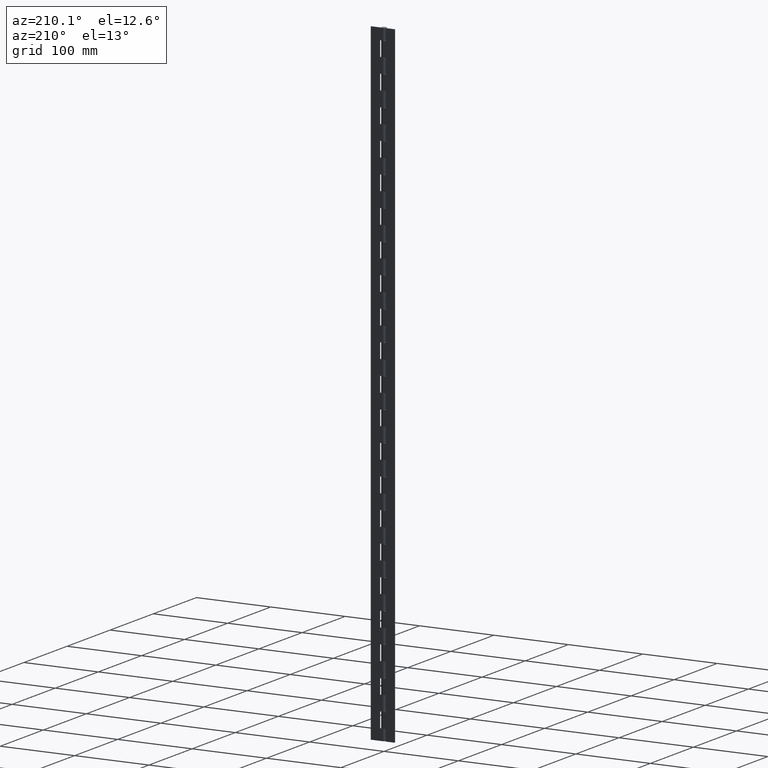
[diagram: clean part render]
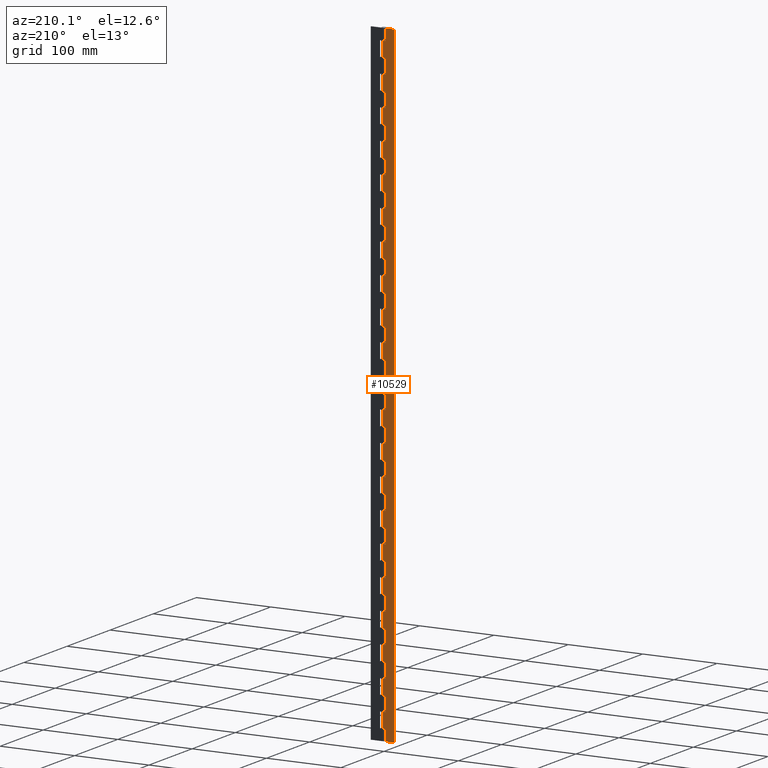
[diagram: same view with one face highlighted and labeled with its STEP entity id]
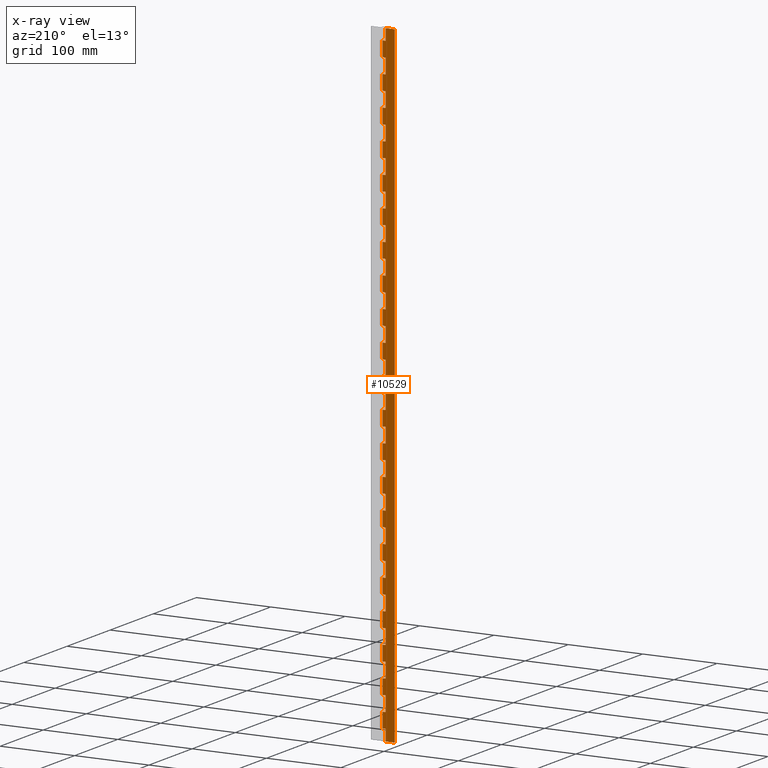
[diagram: x-ray of the same camera — body ghosted, the highlighted face saturated]
A machine part, auxiliary view. The second image highlights one B-rep face of the part: STEP entity #10529.
The next image is the same camera in x-ray: the body ghosted, the highlighted face saturated — about 0% of this face is hidden behind the body in this view.
In plain terms, the highlighted face is a freeform B-spline surface patch.
Its self-contained STEP definition (entity closure, byte-faithful):
#6297=CARTESIAN_POINT('',(0.0,3.250000000000000,15.000022000000151));
#6298=VERTEX_POINT('',#6297);
#6355=CARTESIAN_POINT('',(-4.0,3.250000000000000,15.000022000000151));
#6356=VERTEX_POINT('',#6355);
#6362=CARTESIAN_POINT('',(-4.0,3.250000000000000,15.000022000000151));
#6363=CARTESIAN_POINT('',(0.0,3.250000000000000,15.000022000000151));
#6364=QUASI_UNIFORM_CURVE('',1,(#6362,#6363),.UNSPECIFIED.,.F.,.U.);
#6365=EDGE_CURVE('',#6356,#6298,#6364,.T.);
#6382=CARTESIAN_POINT('',(-4.0,3.250000000000000,0.0));
#6383=VERTEX_POINT('',#6382);
#6389=CARTESIAN_POINT('',(-4.0,3.250000000000000,0.0));
#6390=CARTESIAN_POINT('',(-4.0,3.250000000000000,15.000022000000151));
#6391=QUASI_UNIFORM_CURVE('',1,(#6389,#6390),.UNSPECIFIED.,.F.,.U.);
#6392=EDGE_CURVE('',#6383,#6356,#6391,.T.);
#6405=CARTESIAN_POINT('',(0.0,3.250000000000000,35.000022000000087));
#6406=VERTEX_POINT('',#6405);
#6426=CARTESIAN_POINT('',(-4.0,3.250000000000000,35.000022000000087));
#6427=VERTEX_POINT('',#6426);
#6428=CARTESIAN_POINT('',(0.0,3.250000000000000,35.000022000000087));
#6429=CARTESIAN_POINT('',(-4.0,3.250000000000000,35.000022000000087));
#6430=QUASI_UNIFORM_CURVE('',1,(#6428,#6429),.UNSPECIFIED.,.F.,.U.);
#6431=EDGE_CURVE('',#6406,#6427,#6430,.T.);
#6481=CARTESIAN_POINT('',(0.0,3.250000000000000,55.000022000000101));
#6482=VERTEX_POINT('',#6481);
#6539=CARTESIAN_POINT('',(-4.0,3.250000000000000,55.000022000000101));
#6540=VERTEX_POINT('',#6539);
#6546=CARTESIAN_POINT('',(-4.0,3.250000000000000,55.000022000000101));
#6547=CARTESIAN_POINT('',(0.0,3.250000000000000,55.000022000000101));
#6548=QUASI_UNIFORM_CURVE('',1,(#6546,#6547),.UNSPECIFIED.,.F.,.U.);
#6549=EDGE_CURVE('',#6540,#6482,#6548,.T.);
#6565=CARTESIAN_POINT('',(-4.0,3.250000000000000,35.000022000000087));
#6566=CARTESIAN_POINT('',(-4.0,3.250000000000000,55.000022000000101));
#6567=QUASI_UNIFORM_CURVE('',1,(#6565,#6566),.UNSPECIFIED.,.F.,.U.);
#6568=EDGE_CURVE('',#6427,#6540,#6567,.T.);
#6581=CARTESIAN_POINT('',(0.0,3.250000000000000,75.000022000000101));
#6582=VERTEX_POINT('',#6581);
#6602=CARTESIAN_POINT('',(-4.0,3.250000000000000,75.000022000000101));
#6603=VERTEX_POINT('',#6602);
#6604=CARTESIAN_POINT('',(0.0,3.250000000000000,75.000022000000101));
#6605=CARTESIAN_POINT('',(-4.0,3.250000000000000,75.000022000000101));
#6606=QUASI_UNIFORM_CURVE('',1,(#6604,#6605),.UNSPECIFIED.,.F.,.U.);
#6607=EDGE_CURVE('',#6582,#6603,#6606,.T.);
#6657=CARTESIAN_POINT('',(0.0,3.250000000000000,95.000022000000101));
#6658=VERTEX_POINT('',#6657);
#6715=CARTESIAN_POINT('',(-4.0,3.250000000000000,95.000022000000101));
#6716=VERTEX_POINT('',#6715);
#6722=CARTESIAN_POINT('',(-4.0,3.250000000000000,95.000022000000101));
#6723=CARTESIAN_POINT('',(0.0,3.250000000000000,95.000022000000101));
#6724=QUASI_UNIFORM_CURVE('',1,(#6722,#6723),.UNSPECIFIED.,.F.,.U.);
#6725=EDGE_CURVE('',#6716,#6658,#6724,.T.);
#6741=CARTESIAN_POINT('',(-4.0,3.250000000000000,75.000022000000101));
#6742=CARTESIAN_POINT('',(-4.0,3.250000000000000,95.000022000000101));
#6743=QUASI_UNIFORM_CURVE('',1,(#6741,#6742),.UNSPECIFIED.,.F.,.U.);
#6744=EDGE_CURVE('',#6603,#6716,#6743,.T.);
#6757=CARTESIAN_POINT('',(0.0,3.250000000000000,115.000022000000200));
#6758=VERTEX_POINT('',#6757);
#6778=CARTESIAN_POINT('',(-4.0,3.250000000000000,115.000022000000200));
#6779=VERTEX_POINT('',#6778);
#6780=CARTESIAN_POINT('',(0.0,3.250000000000000,115.000022000000200));
#6781=CARTESIAN_POINT('',(-4.0,3.250000000000000,115.000022000000200));
#6782=QUASI_UNIFORM_CURVE('',1,(#6780,#6781),.UNSPECIFIED.,.F.,.U.);
#6783=EDGE_CURVE('',#6758,#6779,#6782,.T.);
#6833=CARTESIAN_POINT('',(0.0,3.250000000000000,135.000022000000200));
#6834=VERTEX_POINT('',#6833);
#6891=CARTESIAN_POINT('',(-4.0,3.250000000000000,135.000022000000200));
#6892=VERTEX_POINT('',#6891);
#6898=CARTESIAN_POINT('',(-4.0,3.250000000000000,135.000022000000200));
#6899=CARTESIAN_POINT('',(0.0,3.250000000000000,135.000022000000200));
#6900=QUASI_UNIFORM_CURVE('',1,(#6898,#6899),.UNSPECIFIED.,.F.,.U.);
#6901=EDGE_CURVE('',#6892,#6834,#6900,.T.);
#6917=CARTESIAN_POINT('',(-4.0,3.250000000000000,115.000022000000200));
#6918=CARTESIAN_POINT('',(-4.0,3.250000000000000,135.000022000000200));
#6919=QUASI_UNIFORM_CURVE('',1,(#6917,#6918),.UNSPECIFIED.,.F.,.U.);
#6920=EDGE_CURVE('',#6779,#6892,#6919,.T.);
#6933=CARTESIAN_POINT('',(0.0,3.250000000000000,155.000022000000000));
#6934=VERTEX_POINT('',#6933);
#6954=CARTESIAN_POINT('',(-4.0,3.250000000000000,155.000022000000000));
#6955=VERTEX_POINT('',#6954);
#6956=CARTESIAN_POINT('',(0.0,3.250000000000000,155.000022000000000));
#6957=CARTESIAN_POINT('',(-4.0,3.250000000000000,155.000022000000000));
#6958=QUASI_UNIFORM_CURVE('',1,(#6956,#6957),.UNSPECIFIED.,.F.,.U.);
#6959=EDGE_CURVE('',#6934,#6955,#6958,.T.);
#7009=CARTESIAN_POINT('',(0.0,3.250000000000000,175.000022000000000));
#7010=VERTEX_POINT('',#7009);
#7067=CARTESIAN_POINT('',(-4.0,3.250000000000000,175.000022000000000));
#7068=VERTEX_POINT('',#7067);
#7074=CARTESIAN_POINT('',(-4.0,3.250000000000000,175.000022000000000));
#7075=CARTESIAN_POINT('',(0.0,3.250000000000000,175.000022000000000));
#7076=QUASI_UNIFORM_CURVE('',1,(#7074,#7075),.UNSPECIFIED.,.F.,.U.);
#7077=EDGE_CURVE('',#7068,#7010,#7076,.T.);
#7093=CARTESIAN_POINT('',(-4.0,3.250000000000000,155.000022000000000));
#7094=CARTESIAN_POINT('',(-4.0,3.250000000000000,175.000022000000000));
#7095=QUASI_UNIFORM_CURVE('',1,(#7093,#7094),.UNSPECIFIED.,.F.,.U.);
#7096=EDGE_CURVE('',#6955,#7068,#7095,.T.);
#7109=CARTESIAN_POINT('',(0.0,3.250000000000000,195.000022000000000));
#7110=VERTEX_POINT('',#7109);
#7130=CARTESIAN_POINT('',(-4.0,3.250000000000000,195.000022000000000));
#7131=VERTEX_POINT('',#7130);
#7132=CARTESIAN_POINT('',(0.0,3.250000000000000,195.000022000000000));
#7133=CARTESIAN_POINT('',(-4.0,3.250000000000000,195.000022000000000));
#7134=QUASI_UNIFORM_CURVE('',1,(#7132,#7133),.UNSPECIFIED.,.F.,.U.);
#7135=EDGE_CURVE('',#7110,#7131,#7134,.T.);
#7185=CARTESIAN_POINT('',(0.0,3.250000000000000,215.000022000000000));
#7186=VERTEX_POINT('',#7185);
#7243=CARTESIAN_POINT('',(-4.0,3.250000000000000,215.000022000000000));
#7244=VERTEX_POINT('',#7243);
#7250=CARTESIAN_POINT('',(-4.0,3.250000000000000,215.000022000000000));
#7251=CARTESIAN_POINT('',(0.0,3.250000000000000,215.000022000000000));
#7252=QUASI_UNIFORM_CURVE('',1,(#7250,#7251),.UNSPECIFIED.,.F.,.U.);
#7253=EDGE_CURVE('',#7244,#7186,#7252,.T.);
#7269=CARTESIAN_POINT('',(-4.0,3.250000000000000,195.000022000000000));
#7270=CARTESIAN_POINT('',(-4.0,3.250000000000000,215.000022000000000));
#7271=QUASI_UNIFORM_CURVE('',1,(#7269,#7270),.UNSPECIFIED.,.F.,.U.);
#7272=EDGE_CURVE('',#7131,#7244,#7271,.T.);
#7285=CARTESIAN_POINT('',(0.0,3.250000000000000,235.000022000000000));
#7286=VERTEX_POINT('',#7285);
#7306=CARTESIAN_POINT('',(-4.0,3.250000000000000,235.000022000000000));
#7307=VERTEX_POINT('',#7306);
#7308=CARTESIAN_POINT('',(0.0,3.250000000000000,235.000022000000000));
#7309=CARTESIAN_POINT('',(-4.0,3.250000000000000,235.000022000000000));
#7310=QUASI_UNIFORM_CURVE('',1,(#7308,#7309),.UNSPECIFIED.,.F.,.U.);
#7311=EDGE_CURVE('',#7286,#7307,#7310,.T.);
#7361=CARTESIAN_POINT('',(0.0,3.250000000000000,255.000022000000000));
#7362=VERTEX_POINT('',#7361);
#7419=CARTESIAN_POINT('',(-4.0,3.250000000000000,255.000022000000000));
#7420=VERTEX_POINT('',#7419);
#7426=CARTESIAN_POINT('',(-4.0,3.250000000000000,255.000022000000000));
#7427=CARTESIAN_POINT('',(0.0,3.250000000000000,255.000022000000000));
#7428=QUASI_UNIFORM_CURVE('',1,(#7426,#7427),.UNSPECIFIED.,.F.,.U.);
#7429=EDGE_CURVE('',#7420,#7362,#7428,.T.);
#7445=CARTESIAN_POINT('',(-4.0,3.250000000000000,235.000022000000000));
#7446=CARTESIAN_POINT('',(-4.0,3.250000000000000,255.000022000000000));
#7447=QUASI_UNIFORM_CURVE('',1,(#7445,#7446),.UNSPECIFIED.,.F.,.U.);
#7448=EDGE_CURVE('',#7307,#7420,#7447,.T.);
#7461=CARTESIAN_POINT('',(0.0,3.250000000000000,275.000022000000000));
#7462=VERTEX_POINT('',#7461);
#7482=CARTESIAN_POINT('',(-4.0,3.250000000000000,275.000022000000000));
#7483=VERTEX_POINT('',#7482);
#7484=CARTESIAN_POINT('',(0.0,3.250000000000000,275.000022000000000));
#7485=CARTESIAN_POINT('',(-4.0,3.250000000000000,275.000022000000000));
#7486=QUASI_UNIFORM_CURVE('',1,(#7484,#7485),.UNSPECIFIED.,.F.,.U.);
#7487=EDGE_CURVE('',#7462,#7483,#7486,.T.);
#7537=CARTESIAN_POINT('',(0.0,3.250000000000000,295.000021999999890));
#7538=VERTEX_POINT('',#7537);
#7595=CARTESIAN_POINT('',(-4.0,3.250000000000000,295.000021999999890));
#7596=VERTEX_POINT('',#7595);
#7602=CARTESIAN_POINT('',(-4.0,3.250000000000000,295.000021999999890));
#7603=CARTESIAN_POINT('',(0.0,3.250000000000000,295.000021999999890));
#7604=QUASI_UNIFORM_CURVE('',1,(#7602,#7603),.UNSPECIFIED.,.F.,.U.);
#7605=EDGE_CURVE('',#7596,#7538,#7604,.T.);
#7621=CARTESIAN_POINT('',(-4.0,3.250000000000000,275.000022000000000));
#7622=CARTESIAN_POINT('',(-4.0,3.250000000000000,295.000021999999890));
#7623=QUASI_UNIFORM_CURVE('',1,(#7621,#7622),.UNSPECIFIED.,.F.,.U.);
#7624=EDGE_CURVE('',#7483,#7596,#7623,.T.);
#7637=CARTESIAN_POINT('',(0.0,3.250000000000000,315.000022000000000));
#7638=VERTEX_POINT('',#7637);
#7658=CARTESIAN_POINT('',(-4.0,3.250000000000000,315.000022000000000));
#7659=VERTEX_POINT('',#7658);
#7660=CARTESIAN_POINT('',(0.0,3.250000000000000,315.000022000000000));
#7661=CARTESIAN_POINT('',(-4.0,3.250000000000000,315.000022000000000));
#7662=QUASI_UNIFORM_CURVE('',1,(#7660,#7661),.UNSPECIFIED.,.F.,.U.);
#7663=EDGE_CURVE('',#7638,#7659,#7662,.T.);
#7713=CARTESIAN_POINT('',(0.0,3.250000000000000,335.000022000000000));
#7714=VERTEX_POINT('',#7713);
#7771=CARTESIAN_POINT('',(-4.0,3.250000000000000,335.000022000000000));
#7772=VERTEX_POINT('',#7771);
#7778=CARTESIAN_POINT('',(-4.0,3.250000000000000,335.000022000000000));
#7779=CARTESIAN_POINT('',(0.0,3.250000000000000,335.000022000000000));
#7780=QUASI_UNIFORM_CURVE('',1,(#7778,#7779),.UNSPECIFIED.,.F.,.U.);
#7781=EDGE_CURVE('',#7772,#7714,#7780,.T.);
#7797=CARTESIAN_POINT('',(-4.0,3.250000000000000,315.000022000000000));
#7798=CARTESIAN_POINT('',(-4.0,3.250000000000000,335.000022000000000));
#7799=QUASI_UNIFORM_CURVE('',1,(#7797,#7798),.UNSPECIFIED.,.F.,.U.);
#7800=EDGE_CURVE('',#7659,#7772,#7799,.T.);
#7813=CARTESIAN_POINT('',(0.0,3.250000000000000,355.000022000000000));
#7814=VERTEX_POINT('',#7813);
#7834=CARTESIAN_POINT('',(-4.0,3.250000000000000,355.000022000000000));
#7835=VERTEX_POINT('',#7834);
#7836=CARTESIAN_POINT('',(0.0,3.250000000000000,355.000022000000000));
#7837=CARTESIAN_POINT('',(-4.0,3.250000000000000,355.000022000000000));
#7838=QUASI_UNIFORM_CURVE('',1,(#7836,#7837),.UNSPECIFIED.,.F.,.U.);
#7839=EDGE_CURVE('',#7814,#7835,#7838,.T.);
#7889=CARTESIAN_POINT('',(0.0,3.250000000000000,375.000022000000000));
#7890=VERTEX_POINT('',#7889);
#7947=CARTESIAN_POINT('',(-4.0,3.250000000000000,375.000022000000000));
#7948=VERTEX_POINT('',#7947);
#7954=CARTESIAN_POINT('',(-4.0,3.250000000000000,375.000022000000000));
#7955=CARTESIAN_POINT('',(0.0,3.250000000000000,375.000022000000000));
#7956=QUASI_UNIFORM_CURVE('',1,(#7954,#7955),.UNSPECIFIED.,.F.,.U.);
#7957=EDGE_CURVE('',#7948,#7890,#7956,.T.);
#7973=CARTESIAN_POINT('',(-4.0,3.250000000000000,355.000022000000000));
#7974=CARTESIAN_POINT('',(-4.0,3.250000000000000,375.000022000000000));
#7975=QUASI_UNIFORM_CURVE('',1,(#7973,#7974),.UNSPECIFIED.,.F.,.U.);
#7976=EDGE_CURVE('',#7835,#7948,#7975,.T.);
#7989=CARTESIAN_POINT('',(0.0,3.250000000000000,395.000022000000000));
#7990=VERTEX_POINT('',#7989);
#8010=CARTESIAN_POINT('',(-4.0,3.250000000000000,395.000022000000000));
#8011=VERTEX_POINT('',#8010);
#8012=CARTESIAN_POINT('',(0.0,3.250000000000000,395.000022000000000));
#8013=CARTESIAN_POINT('',(-4.0,3.250000000000000,395.000022000000000));
#8014=QUASI_UNIFORM_CURVE('',1,(#8012,#8013),.UNSPECIFIED.,.F.,.U.);
#8015=EDGE_CURVE('',#7990,#8011,#8014,.T.);
#8065=CARTESIAN_POINT('',(0.0,3.250000000000000,415.000022000000000));
#8066=VERTEX_POINT('',#8065);
#8123=CARTESIAN_POINT('',(-4.0,3.250000000000000,415.000022000000000));
#8124=VERTEX_POINT('',#8123);
#8130=CARTESIAN_POINT('',(-4.0,3.250000000000000,415.000022000000000));
#8131=CARTESIAN_POINT('',(0.0,3.250000000000000,415.000022000000000));
#8132=QUASI_UNIFORM_CURVE('',1,(#8130,#8131),.UNSPECIFIED.,.F.,.U.);
#8133=EDGE_CURVE('',#8124,#8066,#8132,.T.);
#8149=CARTESIAN_POINT('',(-4.0,3.250000000000000,395.000022000000000));
#8150=CARTESIAN_POINT('',(-4.0,3.250000000000000,415.000022000000000));
#8151=QUASI_UNIFORM_CURVE('',1,(#8149,#8150),.UNSPECIFIED.,.F.,.U.);
#8152=EDGE_CURVE('',#8011,#8124,#8151,.T.);
#8165=CARTESIAN_POINT('',(0.0,3.250000000000000,435.000022000000000));
#8166=VERTEX_POINT('',#8165);
#8186=CARTESIAN_POINT('',(-4.0,3.250000000000000,435.000022000000000));
#8187=VERTEX_POINT('',#8186);
#8188=CARTESIAN_POINT('',(0.0,3.250000000000000,435.000022000000000));
#8189=CARTESIAN_POINT('',(-4.0,3.250000000000000,435.000022000000000));
#8190=QUASI_UNIFORM_CURVE('',1,(#8188,#8189),.UNSPECIFIED.,.F.,.U.);
#8191=EDGE_CURVE('',#8166,#8187,#8190,.T.);
#8241=CARTESIAN_POINT('',(0.0,3.250000000000000,455.000022000000000));
#8242=VERTEX_POINT('',#8241);
#8299=CARTESIAN_POINT('',(-4.0,3.250000000000000,455.000022000000000));
#8300=VERTEX_POINT('',#8299);
#8306=CARTESIAN_POINT('',(-4.0,3.250000000000000,455.000022000000000));
#8307=CARTESIAN_POINT('',(0.0,3.250000000000000,455.000022000000000));
#8308=QUASI_UNIFORM_CURVE('',1,(#8306,#8307),.UNSPECIFIED.,.F.,.U.);
#8309=EDGE_CURVE('',#8300,#8242,#8308,.T.);
#8325=CARTESIAN_POINT('',(-4.0,3.250000000000000,435.000022000000000));
#8326=CARTESIAN_POINT('',(-4.0,3.250000000000000,455.000022000000000));
#8327=QUASI_UNIFORM_CURVE('',1,(#8325,#8326),.UNSPECIFIED.,.F.,.U.);
#8328=EDGE_CURVE('',#8187,#8300,#8327,.T.);
#8341=CARTESIAN_POINT('',(0.0,3.250000000000000,475.000022000000000));
#8342=VERTEX_POINT('',#8341);
#8362=CARTESIAN_POINT('',(-4.0,3.250000000000000,475.000022000000000));
#8363=VERTEX_POINT('',#8362);
#8364=CARTESIAN_POINT('',(0.0,3.250000000000000,475.000022000000000));
#8365=CARTESIAN_POINT('',(-4.0,3.250000000000000,475.000022000000000));
#8366=QUASI_UNIFORM_CURVE('',1,(#8364,#8365),.UNSPECIFIED.,.F.,.U.);
#8367=EDGE_CURVE('',#8342,#8363,#8366,.T.);
#8417=CARTESIAN_POINT('',(0.0,3.250000000000000,495.000022000000000));
#8418=VERTEX_POINT('',#8417);
#8475=CARTESIAN_POINT('',(-4.0,3.250000000000000,495.000022000000000));
#8476=VERTEX_POINT('',#8475);
#8482=CARTESIAN_POINT('',(-4.0,3.250000000000000,495.000022000000000));
#8483=CARTESIAN_POINT('',(0.0,3.250000000000000,495.000022000000000));
#8484=QUASI_UNIFORM_CURVE('',1,(#8482,#8483),.UNSPECIFIED.,.F.,.U.);
#8485=EDGE_CURVE('',#8476,#8418,#8484,.T.);
#8501=CARTESIAN_POINT('',(-4.0,3.250000000000000,475.000022000000000));
#8502=CARTESIAN_POINT('',(-4.0,3.250000000000000,495.000022000000000));
#8503=QUASI_UNIFORM_CURVE('',1,(#8501,#8502),.UNSPECIFIED.,.F.,.U.);
#8504=EDGE_CURVE('',#8363,#8476,#8503,.T.);
#8517=CARTESIAN_POINT('',(0.0,3.250000000000000,515.000021999999940));
#8518=VERTEX_POINT('',#8517);
#8538=CARTESIAN_POINT('',(-4.0,3.250000000000000,515.000021999999940));
#8539=VERTEX_POINT('',#8538);
#8540=CARTESIAN_POINT('',(0.0,3.250000000000000,515.000021999999940));
#8541=CARTESIAN_POINT('',(-4.0,3.250000000000000,515.000021999999940));
#8542=QUASI_UNIFORM_CURVE('',1,(#8540,#8541),.UNSPECIFIED.,.F.,.U.);
#8543=EDGE_CURVE('',#8518,#8539,#8542,.T.);
#8593=CARTESIAN_POINT('',(0.0,3.250000000000000,535.000021999999940));
#8594=VERTEX_POINT('',#8593);
#8651=CARTESIAN_POINT('',(-4.0,3.250000000000000,535.000021999999940));
#8652=VERTEX_POINT('',#8651);
#8658=CARTESIAN_POINT('',(-4.0,3.250000000000000,535.000021999999940));
#8659=CARTESIAN_POINT('',(0.0,3.250000000000000,535.000021999999940));
#8660=QUASI_UNIFORM_CURVE('',1,(#8658,#8659),.UNSPECIFIED.,.F.,.U.);
#8661=EDGE_CURVE('',#8652,#8594,#8660,.T.);
#8677=CARTESIAN_POINT('',(-4.0,3.250000000000000,515.000021999999940));
#8678=CARTESIAN_POINT('',(-4.0,3.250000000000000,535.000021999999940));
#8679=QUASI_UNIFORM_CURVE('',1,(#8677,#8678),.UNSPECIFIED.,.F.,.U.);
#8680=EDGE_CURVE('',#8539,#8652,#8679,.T.);
#8693=CARTESIAN_POINT('',(0.0,3.250000000000000,555.000021999999940));
#8694=VERTEX_POINT('',#8693);
#8714=CARTESIAN_POINT('',(-4.0,3.250000000000000,555.000021999999940));
#8715=VERTEX_POINT('',#8714);
#8716=CARTESIAN_POINT('',(0.0,3.250000000000000,555.000021999999940));
#8717=CARTESIAN_POINT('',(-4.0,3.250000000000000,555.000021999999940));
#8718=QUASI_UNIFORM_CURVE('',1,(#8716,#8717),.UNSPECIFIED.,.F.,.U.);
#8719=EDGE_CURVE('',#8694,#8715,#8718,.T.);
#8769=CARTESIAN_POINT('',(0.0,3.250000000000000,575.000021999999940));
#8770=VERTEX_POINT('',#8769);
#8827=CARTESIAN_POINT('',(-4.0,3.250000000000000,575.000021999999940));
#8828=VERTEX_POINT('',#8827);
#8834=CARTESIAN_POINT('',(-4.0,3.250000000000000,575.000021999999940));
#8835=CARTESIAN_POINT('',(0.0,3.250000000000000,575.000021999999940));
#8836=QUASI_UNIFORM_CURVE('',1,(#8834,#8835),.UNSPECIFIED.,.F.,.U.);
#8837=EDGE_CURVE('',#8828,#8770,#8836,.T.);
#8853=CARTESIAN_POINT('',(-4.0,3.250000000000000,555.000021999999940));
#8854=CARTESIAN_POINT('',(-4.0,3.250000000000000,575.000021999999940));
#8855=QUASI_UNIFORM_CURVE('',1,(#8853,#8854),.UNSPECIFIED.,.F.,.U.);
#8856=EDGE_CURVE('',#8715,#8828,#8855,.T.);
#8869=CARTESIAN_POINT('',(0.0,3.250000000000000,595.000022000000060));
#8870=VERTEX_POINT('',#8869);
#8890=CARTESIAN_POINT('',(-4.0,3.250000000000000,595.000022000000060));
#8891=VERTEX_POINT('',#8890);
#8892=CARTESIAN_POINT('',(0.0,3.250000000000000,595.000022000000060));
#8893=CARTESIAN_POINT('',(-4.0,3.250000000000000,595.000022000000060));
#8894=QUASI_UNIFORM_CURVE('',1,(#8892,#8893),.UNSPECIFIED.,.F.,.U.);
#8895=EDGE_CURVE('',#8870,#8891,#8894,.T.);
#8945=CARTESIAN_POINT('',(0.0,3.250000000000000,615.000022000000060));
#8946=VERTEX_POINT('',#8945);
#9003=CARTESIAN_POINT('',(-4.0,3.250000000000000,615.000022000000060));
#9004=VERTEX_POINT('',#9003);
#9010=CARTESIAN_POINT('',(-4.0,3.250000000000000,615.000022000000060));
#9011=CARTESIAN_POINT('',(0.0,3.250000000000000,615.000022000000060));
#9012=QUASI_UNIFORM_CURVE('',1,(#9010,#9011),.UNSPECIFIED.,.F.,.U.);
#9013=EDGE_CURVE('',#9004,#8946,#9012,.T.);
#9029=CARTESIAN_POINT('',(-4.0,3.250000000000000,595.000022000000060));
#9030=CARTESIAN_POINT('',(-4.0,3.250000000000000,615.000022000000060));
#9031=QUASI_UNIFORM_CURVE('',1,(#9029,#9030),.UNSPECIFIED.,.F.,.U.);
#9032=EDGE_CURVE('',#8891,#9004,#9031,.T.);
#9045=CARTESIAN_POINT('',(0.0,3.250000000000000,635.000022000000060));
#9046=VERTEX_POINT('',#9045);
#9066=CARTESIAN_POINT('',(-4.0,3.250000000000000,635.000022000000060));
#9067=VERTEX_POINT('',#9066);
#9068=CARTESIAN_POINT('',(0.0,3.250000000000000,635.000022000000060));
#9069=CARTESIAN_POINT('',(-4.0,3.250000000000000,635.000022000000060));
#9070=QUASI_UNIFORM_CURVE('',1,(#9068,#9069),.UNSPECIFIED.,.F.,.U.);
#9071=EDGE_CURVE('',#9046,#9067,#9070,.T.);
#9121=CARTESIAN_POINT('',(0.0,3.250000000000000,655.000021999999940));
#9122=VERTEX_POINT('',#9121);
#9179=CARTESIAN_POINT('',(-4.0,3.250000000000000,655.000021999999940));
#9180=VERTEX_POINT('',#9179);
#9186=CARTESIAN_POINT('',(-4.0,3.250000000000000,655.000021999999940));
#9187=CARTESIAN_POINT('',(0.0,3.250000000000000,655.000021999999940));
#9188=QUASI_UNIFORM_CURVE('',1,(#9186,#9187),.UNSPECIFIED.,.F.,.U.);
#9189=EDGE_CURVE('',#9180,#9122,#9188,.T.);
#9205=CARTESIAN_POINT('',(-4.0,3.250000000000000,635.000022000000060));
#9206=CARTESIAN_POINT('',(-4.0,3.250000000000000,655.000021999999940));
#9207=QUASI_UNIFORM_CURVE('',1,(#9205,#9206),.UNSPECIFIED.,.F.,.U.);
#9208=EDGE_CURVE('',#9067,#9180,#9207,.T.);
#9221=CARTESIAN_POINT('',(0.0,3.250000000000000,675.000021999999940));
#9222=VERTEX_POINT('',#9221);
#9242=CARTESIAN_POINT('',(-4.0,3.250000000000000,675.000021999999940));
#9243=VERTEX_POINT('',#9242);
#9244=CARTESIAN_POINT('',(0.0,3.250000000000000,675.000021999999940));
#9245=CARTESIAN_POINT('',(-4.0,3.250000000000000,675.000021999999940));
#9246=QUASI_UNIFORM_CURVE('',1,(#9244,#9245),.UNSPECIFIED.,.F.,.U.);
#9247=EDGE_CURVE('',#9222,#9243,#9246,.T.);
#9297=CARTESIAN_POINT('',(0.0,3.250000000000000,695.000021999999940));
#9298=VERTEX_POINT('',#9297);
#9355=CARTESIAN_POINT('',(-4.0,3.250000000000000,695.000021999999940));
#9356=VERTEX_POINT('',#9355);
#9362=CARTESIAN_POINT('',(-4.0,3.250000000000000,695.000021999999940));
#9363=CARTESIAN_POINT('',(0.0,3.250000000000000,695.000021999999940));
#9364=QUASI_UNIFORM_CURVE('',1,(#9362,#9363),.UNSPECIFIED.,.F.,.U.);
#9365=EDGE_CURVE('',#9356,#9298,#9364,.T.);
#9381=CARTESIAN_POINT('',(-4.0,3.250000000000000,675.000021999999940));
#9382=CARTESIAN_POINT('',(-4.0,3.250000000000000,695.000021999999940));
#9383=QUASI_UNIFORM_CURVE('',1,(#9381,#9382),.UNSPECIFIED.,.F.,.U.);
#9384=EDGE_CURVE('',#9243,#9356,#9383,.T.);
#9397=CARTESIAN_POINT('',(0.0,3.250000000000000,715.000022000000060));
#9398=VERTEX_POINT('',#9397);
#9418=CARTESIAN_POINT('',(-4.0,3.250000000000000,715.000022000000060));
#9419=VERTEX_POINT('',#9418);
#9420=CARTESIAN_POINT('',(0.0,3.250000000000000,715.000022000000060));
#9421=CARTESIAN_POINT('',(-4.0,3.250000000000000,715.000022000000060));
#9422=QUASI_UNIFORM_CURVE('',1,(#9420,#9421),.UNSPECIFIED.,.F.,.U.);
#9423=EDGE_CURVE('',#9398,#9419,#9422,.T.);
#9473=CARTESIAN_POINT('',(0.0,3.250000000000000,735.000022000000060));
#9474=VERTEX_POINT('',#9473);
#9531=CARTESIAN_POINT('',(-4.0,3.250000000000000,735.000022000000060));
#9532=VERTEX_POINT('',#9531);
#9538=CARTESIAN_POINT('',(-4.0,3.250000000000000,735.000022000000060));
#9539=CARTESIAN_POINT('',(0.0,3.250000000000000,735.000022000000060));
#9540=QUASI_UNIFORM_CURVE('',1,(#9538,#9539),.UNSPECIFIED.,.F.,.U.);
#9541=EDGE_CURVE('',#9532,#9474,#9540,.T.);
#9557=CARTESIAN_POINT('',(-4.0,3.250000000000000,715.000022000000060));
#9558=CARTESIAN_POINT('',(-4.0,3.250000000000000,735.000022000000060));
#9559=QUASI_UNIFORM_CURVE('',1,(#9557,#9558),.UNSPECIFIED.,.F.,.U.);
#9560=EDGE_CURVE('',#9419,#9532,#9559,.T.);
#9573=CARTESIAN_POINT('',(0.0,3.250000000000000,755.000022000000060));
#9574=VERTEX_POINT('',#9573);
#9594=CARTESIAN_POINT('',(-4.0,3.250000000000000,755.000022000000060));
#9595=VERTEX_POINT('',#9594);
#9596=CARTESIAN_POINT('',(0.0,3.250000000000000,755.000022000000060));
#9597=CARTESIAN_POINT('',(-4.0,3.250000000000000,755.000022000000060));
#9598=QUASI_UNIFORM_CURVE('',1,(#9596,#9597),.UNSPECIFIED.,.F.,.U.);
#9599=EDGE_CURVE('',#9574,#9595,#9598,.T.);
#9649=CARTESIAN_POINT('',(0.0,3.250000000000000,775.000021999999940));
#9650=VERTEX_POINT('',#9649);
#9707=CARTESIAN_POINT('',(-4.0,3.250000000000000,775.000021999999940));
#9708=VERTEX_POINT('',#9707);
#9714=CARTESIAN_POINT('',(-4.0,3.250000000000000,775.000021999999940));
#9715=CARTESIAN_POINT('',(0.0,3.250000000000000,775.000021999999940));
#9716=QUASI_UNIFORM_CURVE('',1,(#9714,#9715),.UNSPECIFIED.,.F.,.U.);
#9717=EDGE_CURVE('',#9708,#9650,#9716,.T.);
#9733=CARTESIAN_POINT('',(-4.0,3.250000000000000,755.000022000000060));
#9734=CARTESIAN_POINT('',(-4.0,3.250000000000000,775.000021999999940));
#9735=QUASI_UNIFORM_CURVE('',1,(#9733,#9734),.UNSPECIFIED.,.F.,.U.);
#9736=EDGE_CURVE('',#9595,#9708,#9735,.T.);
#9749=CARTESIAN_POINT('',(0.0,3.250000000000000,795.000021999999940));
#9750=VERTEX_POINT('',#9749);
#9770=CARTESIAN_POINT('',(-4.0,3.250000000000000,795.000021999999940));
#9771=VERTEX_POINT('',#9770);
#9772=CARTESIAN_POINT('',(0.0,3.250000000000000,795.000021999999940));
#9773=CARTESIAN_POINT('',(-4.0,3.250000000000000,795.000021999999940));
#9774=QUASI_UNIFORM_CURVE('',1,(#9772,#9773),.UNSPECIFIED.,.F.,.U.);
#9775=EDGE_CURVE('',#9750,#9771,#9774,.T.);
#9825=CARTESIAN_POINT('',(0.0,3.250000000000000,815.000021999999940));
#9826=VERTEX_POINT('',#9825);
#9883=CARTESIAN_POINT('',(-4.0,3.250000000000000,815.000021999999940));
#9884=VERTEX_POINT('',#9883);
#9890=CARTESIAN_POINT('',(-4.0,3.250000000000000,815.000021999999940));
#9891=CARTESIAN_POINT('',(0.0,3.250000000000000,815.000021999999940));
#9892=QUASI_UNIFORM_CURVE('',1,(#9890,#9891),.UNSPECIFIED.,.F.,.U.);
#9893=EDGE_CURVE('',#9884,#9826,#9892,.T.);
#9909=CARTESIAN_POINT('',(-4.0,3.250000000000000,795.000021999999940));
#9910=CARTESIAN_POINT('',(-4.0,3.250000000000000,815.000021999999940));
#9911=QUASI_UNIFORM_CURVE('',1,(#9909,#9910),.UNSPECIFIED.,.F.,.U.);
#9912=EDGE_CURVE('',#9771,#9884,#9911,.T.);
#9925=CARTESIAN_POINT('',(0.0,3.250000000000000,835.000022000000060));
#9926=VERTEX_POINT('',#9925);
#9946=CARTESIAN_POINT('',(-4.0,3.250000000000000,835.000022000000060));
#9947=VERTEX_POINT('',#9946);
#9948=CARTESIAN_POINT('',(0.0,3.250000000000000,835.000022000000060));
#9949=CARTESIAN_POINT('',(-4.0,3.250000000000000,835.000022000000060));
#9950=QUASI_UNIFORM_CURVE('',1,(#9948,#9949),.UNSPECIFIED.,.F.,.U.);
#9951=EDGE_CURVE('',#9926,#9947,#9950,.T.);
#10009=CARTESIAN_POINT('',(-4.0,3.250000000000000,850.000022000000060));
#10010=VERTEX_POINT('',#10009);
#10011=CARTESIAN_POINT('',(-4.0,3.250000000000000,835.000022000000060));
#10012=CARTESIAN_POINT('',(-4.0,3.250000000000000,850.000022000000060));
#10013=QUASI_UNIFORM_CURVE('',1,(#10011,#10012),.UNSPECIFIED.,.F.,.U.);
#10014=EDGE_CURVE('',#9947,#10010,#10013,.T.);
#10037=CARTESIAN_POINT('',(-16.0,3.250000000000000,0.0));
#10038=VERTEX_POINT('',#10037);
#10044=CARTESIAN_POINT('',(-16.0,3.250000000000000,0.0));
#10045=CARTESIAN_POINT('',(-4.0,3.250000000000000,0.0));
#10046=QUASI_UNIFORM_CURVE('',1,(#10044,#10045),.UNSPECIFIED.,.F.,.U.);
#10047=EDGE_CURVE('',#10038,#6383,#10046,.T.);
#10065=CARTESIAN_POINT('',(-16.0,3.250000000000000,850.000022000000060));
#10066=VERTEX_POINT('',#10065);
#10067=CARTESIAN_POINT('',(-16.0,3.250000000000000,850.000022000000060));
#10068=CARTESIAN_POINT('',(-4.0,3.250000000000000,850.000022000000060));
#10069=QUASI_UNIFORM_CURVE('',1,(#10067,#10068),.UNSPECIFIED.,.F.,.U.);
#10070=EDGE_CURVE('',#10066,#10010,#10069,.T.);
#10341=CARTESIAN_POINT('',(0.0,3.250000000000000,835.000022000000060));
#10342=CARTESIAN_POINT('',(0.0,3.250000000000000,815.000021999999940));
#10343=QUASI_UNIFORM_CURVE('',1,(#10341,#10342),.UNSPECIFIED.,.F.,.U.);
#10344=EDGE_CURVE('',#9926,#9826,#10343,.T.);
#10350=CARTESIAN_POINT('',(-16.799199968988891,3.250000000000000,-42.457496414637902));
#10351=CARTESIAN_POINT('',(-16.799199968988891,3.250000000000000,892.457480416676050));
#10352=CARTESIAN_POINT('',(0.799200398142339,3.250000000000000,-42.457496414637902));
#10353=CARTESIAN_POINT('',(0.799200398142339,3.250000000000000,892.457480416676050));
#10354=B_SPLINE_SURFACE_WITH_KNOTS('',1,1,((#10350,#10352),(#10351,#10353)),.UNSPECIFIED.,.F.,.F.,.U.,(2,2),(2,2),(0.0,934.914976831313990),(0.0,17.598400367131230),.UNSPECIFIED.);
#10355=ORIENTED_EDGE('',*,*,#6392,.F.);
#10356=ORIENTED_EDGE('',*,*,#10047,.F.);
#10357=CARTESIAN_POINT('',(-16.0,3.250000000000000,850.000022000000060));
#10358=CARTESIAN_POINT('',(-16.0,3.250000000000000,0.0));
#10359=QUASI_UNIFORM_CURVE('',1,(#10357,#10358),.UNSPECIFIED.,.F.,.U.);
#10360=EDGE_CURVE('',#10066,#10038,#10359,.T.);
#10361=ORIENTED_EDGE('',*,*,#10360,.F.);
#10362=ORIENTED_EDGE('',*,*,#10070,.T.);
#10363=ORIENTED_EDGE('',*,*,#10014,.F.);
#10364=ORIENTED_EDGE('',*,*,#9951,.F.);
#10365=ORIENTED_EDGE('',*,*,#10344,.T.);
#10366=ORIENTED_EDGE('',*,*,#9893,.F.);
#10367=ORIENTED_EDGE('',*,*,#9912,.F.);
#10368=ORIENTED_EDGE('',*,*,#9775,.F.);
#10369=CARTESIAN_POINT('',(0.0,3.250000000000000,795.000021999999940));
#10370=CARTESIAN_POINT('',(0.0,3.250000000000000,775.000021999999940));
#10371=QUASI_UNIFORM_CURVE('',1,(#10369,#10370),.UNSPECIFIED.,.F.,.U.);
#10372=EDGE_CURVE('',#9750,#9650,#10371,.T.);
#10373=ORIENTED_EDGE('',*,*,#10372,.T.);
#10374=ORIENTED_EDGE('',*,*,#9717,.F.);
#10375=ORIENTED_EDGE('',*,*,#9736,.F.);
#10376=ORIENTED_EDGE('',*,*,#9599,.F.);
#10377=CARTESIAN_POINT('',(0.0,3.250000000000000,755.000022000000060));
#10378=CARTESIAN_POINT('',(0.0,3.250000000000000,735.000022000000060));
#10379=QUASI_UNIFORM_CURVE('',1,(#10377,#10378),.UNSPECIFIED.,.F.,.U.);
#10380=EDGE_CURVE('',#9574,#9474,#10379,.T.);
#10381=ORIENTED_EDGE('',*,*,#10380,.T.);
#10382=ORIENTED_EDGE('',*,*,#9541,.F.);
#10383=ORIENTED_EDGE('',*,*,#9560,.F.);
#10384=ORIENTED_EDGE('',*,*,#9423,.F.);
#10385=CARTESIAN_POINT('',(0.0,3.250000000000000,715.000022000000060));
#10386=CARTESIAN_POINT('',(0.0,3.250000000000000,695.000021999999940));
#10387=QUASI_UNIFORM_CURVE('',1,(#10385,#10386),.UNSPECIFIED.,.F.,.U.);
#10388=EDGE_CURVE('',#9398,#9298,#10387,.T.);
#10389=ORIENTED_EDGE('',*,*,#10388,.T.);
#10390=ORIENTED_EDGE('',*,*,#9365,.F.);
#10391=ORIENTED_EDGE('',*,*,#9384,.F.);
#10392=ORIENTED_EDGE('',*,*,#9247,.F.);
#10393=CARTESIAN_POINT('',(0.0,3.250000000000000,675.000021999999940));
#10394=CARTESIAN_POINT('',(0.0,3.250000000000000,655.000021999999940));
#10395=QUASI_UNIFORM_CURVE('',1,(#10393,#10394),.UNSPECIFIED.,.F.,.U.);
#10396=EDGE_CURVE('',#9222,#9122,#10395,.T.);
#10397=ORIENTED_EDGE('',*,*,#10396,.T.);
#10398=ORIENTED_EDGE('',*,*,#9189,.F.);
#10399=ORIENTED_EDGE('',*,*,#9208,.F.);
#10400=ORIENTED_EDGE('',*,*,#9071,.F.);
#10401=CARTESIAN_POINT('',(0.0,3.250000000000000,635.000022000000060));
#10402=CARTESIAN_POINT('',(0.0,3.250000000000000,615.000022000000060));
#10403=QUASI_UNIFORM_CURVE('',1,(#10401,#10402),.UNSPECIFIED.,.F.,.U.);
#10404=EDGE_CURVE('',#9046,#8946,#10403,.T.);
#10405=ORIENTED_EDGE('',*,*,#10404,.T.);
#10406=ORIENTED_EDGE('',*,*,#9013,.F.);
#10407=ORIENTED_EDGE('',*,*,#9032,.F.);
#10408=ORIENTED_EDGE('',*,*,#8895,.F.);
#10409=CARTESIAN_POINT('',(0.0,3.250000000000000,595.000022000000060));
#10410=CARTESIAN_POINT('',(0.0,3.250000000000000,575.000021999999940));
#10411=QUASI_UNIFORM_CURVE('',1,(#10409,#10410),.UNSPECIFIED.,.F.,.U.);
#10412=EDGE_CURVE('',#8870,#8770,#10411,.T.);
#10413=ORIENTED_EDGE('',*,*,#10412,.T.);
#10414=ORIENTED_EDGE('',*,*,#8837,.F.);
#10415=ORIENTED_EDGE('',*,*,#8856,.F.);
#10416=ORIENTED_EDGE('',*,*,#8719,.F.);
#10417=CARTESIAN_POINT('',(0.0,3.250000000000000,555.000021999999940));
#10418=CARTESIAN_POINT('',(0.0,3.250000000000000,535.000021999999940));
#10419=QUASI_UNIFORM_CURVE('',1,(#10417,#10418),.UNSPECIFIED.,.F.,.U.);
#10420=EDGE_CURVE('',#8694,#8594,#10419,.T.);
#10421=ORIENTED_EDGE('',*,*,#10420,.T.);
#10422=ORIENTED_EDGE('',*,*,#8661,.F.);
#10423=ORIENTED_EDGE('',*,*,#8680,.F.);
#10424=ORIENTED_EDGE('',*,*,#8543,.F.);
#10425=CARTESIAN_POINT('',(0.0,3.250000000000000,515.000021999999940));
#10426=CARTESIAN_POINT('',(0.0,3.250000000000000,495.000022000000000));
#10427=QUASI_UNIFORM_CURVE('',1,(#10425,#10426),.UNSPECIFIED.,.F.,.U.);
#10428=EDGE_CURVE('',#8518,#8418,#10427,.T.);
#10429=ORIENTED_EDGE('',*,*,#10428,.T.);
#10430=ORIENTED_EDGE('',*,*,#8485,.F.);
#10431=ORIENTED_EDGE('',*,*,#8504,.F.);
#10432=ORIENTED_EDGE('',*,*,#8367,.F.);
#10433=CARTESIAN_POINT('',(0.0,3.250000000000000,475.000022000000000));
#10434=CARTESIAN_POINT('',(0.0,3.250000000000000,455.000022000000000));
#10435=QUASI_UNIFORM_CURVE('',1,(#10433,#10434),.UNSPECIFIED.,.F.,.U.);
#10436=EDGE_CURVE('',#8342,#8242,#10435,.T.);
#10437=ORIENTED_EDGE('',*,*,#10436,.T.);
#10438=ORIENTED_EDGE('',*,*,#8309,.F.);
#10439=ORIENTED_EDGE('',*,*,#8328,.F.);
#10440=ORIENTED_EDGE('',*,*,#8191,.F.);
#10441=CARTESIAN_POINT('',(0.0,3.250000000000000,435.000022000000000));
#10442=CARTESIAN_POINT('',(0.0,3.250000000000000,415.000022000000000));
#10443=QUASI_UNIFORM_CURVE('',1,(#10441,#10442),.UNSPECIFIED.,.F.,.U.);
#10444=EDGE_CURVE('',#8166,#8066,#10443,.T.);
#10445=ORIENTED_EDGE('',*,*,#10444,.T.);
#10446=ORIENTED_EDGE('',*,*,#8133,.F.);
#10447=ORIENTED_EDGE('',*,*,#8152,.F.);
#10448=ORIENTED_EDGE('',*,*,#8015,.F.);
#10449=CARTESIAN_POINT('',(0.0,3.250000000000000,395.000022000000000));
#10450=CARTESIAN_POINT('',(0.0,3.250000000000000,375.000022000000000));
#10451=QUASI_UNIFORM_CURVE('',1,(#10449,#10450),.UNSPECIFIED.,.F.,.U.);
#10452=EDGE_CURVE('',#7990,#7890,#10451,.T.);
#10453=ORIENTED_EDGE('',*,*,#10452,.T.);
#10454=ORIENTED_EDGE('',*,*,#7957,.F.);
#10455=ORIENTED_EDGE('',*,*,#7976,.F.);
#10456=ORIENTED_EDGE('',*,*,#7839,.F.);
#10457=CARTESIAN_POINT('',(0.0,3.250000000000000,355.000022000000000));
#10458=CARTESIAN_POINT('',(0.0,3.250000000000000,335.000022000000000));
#10459=QUASI_UNIFORM_CURVE('',1,(#10457,#10458),.UNSPECIFIED.,.F.,.U.);
#10460=EDGE_CURVE('',#7814,#7714,#10459,.T.);
#10461=ORIENTED_EDGE('',*,*,#10460,.T.);
#10462=ORIENTED_EDGE('',*,*,#7781,.F.);
#10463=ORIENTED_EDGE('',*,*,#7800,.F.);
#10464=ORIENTED_EDGE('',*,*,#7663,.F.);
#10465=CARTESIAN_POINT('',(0.0,3.250000000000000,315.000022000000000));
#10466=CARTESIAN_POINT('',(0.0,3.250000000000000,295.000021999999890));
#10467=QUASI_UNIFORM_CURVE('',1,(#10465,#10466),.UNSPECIFIED.,.F.,.U.);
#10468=EDGE_CURVE('',#7638,#7538,#10467,.T.);
#10469=ORIENTED_EDGE('',*,*,#10468,.T.);
#10470=ORIENTED_EDGE('',*,*,#7605,.F.);
#10471=ORIENTED_EDGE('',*,*,#7624,.F.);
#10472=ORIENTED_EDGE('',*,*,#7487,.F.);
#10473=CARTESIAN_POINT('',(0.0,3.250000000000000,275.000022000000000));
#10474=CARTESIAN_POINT('',(0.0,3.250000000000000,255.000022000000000));
#10475=QUASI_UNIFORM_CURVE('',1,(#10473,#10474),.UNSPECIFIED.,.F.,.U.);
#10476=EDGE_CURVE('',#7462,#7362,#10475,.T.);
#10477=ORIENTED_EDGE('',*,*,#10476,.T.);
#10478=ORIENTED_EDGE('',*,*,#7429,.F.);
#10479=ORIENTED_EDGE('',*,*,#7448,.F.);
#10480=ORIENTED_EDGE('',*,*,#7311,.F.);
#10481=CARTESIAN_POINT('',(0.0,3.250000000000000,235.000022000000000));
#10482=CARTESIAN_POINT('',(0.0,3.250000000000000,215.000022000000000));
#10483=QUASI_UNIFORM_CURVE('',1,(#10481,#10482),.UNSPECIFIED.,.F.,.U.);
#10484=EDGE_CURVE('',#7286,#7186,#10483,.T.);
#10485=ORIENTED_EDGE('',*,*,#10484,.T.);
#10486=ORIENTED_EDGE('',*,*,#7253,.F.);
#10487=ORIENTED_EDGE('',*,*,#7272,.F.);
#10488=ORIENTED_EDGE('',*,*,#7135,.F.);
#10489=CARTESIAN_POINT('',(0.0,3.250000000000000,195.000022000000000));
#10490=CARTESIAN_POINT('',(0.0,3.250000000000000,175.000022000000000));
#10491=QUASI_UNIFORM_CURVE('',1,(#10489,#10490),.UNSPECIFIED.,.F.,.U.);
#10492=EDGE_CURVE('',#7110,#7010,#10491,.T.);
#10493=ORIENTED_EDGE('',*,*,#10492,.T.);
#10494=ORIENTED_EDGE('',*,*,#7077,.F.);
#10495=ORIENTED_EDGE('',*,*,#7096,.F.);
#10496=ORIENTED_EDGE('',*,*,#6959,.F.);
#10497=CARTESIAN_POINT('',(0.0,3.250000000000000,155.000022000000000));
#10498=CARTESIAN_POINT('',(0.0,3.250000000000000,135.000022000000200));
#10499=QUASI_UNIFORM_CURVE('',1,(#10497,#10498),.UNSPECIFIED.,.F.,.U.);
#10500=EDGE_CURVE('',#6934,#6834,#10499,.T.);
#10501=ORIENTED_EDGE('',*,*,#10500,.T.);
#10502=ORIENTED_EDGE('',*,*,#6901,.F.);
#10503=ORIENTED_EDGE('',*,*,#6920,.F.);
#10504=ORIENTED_EDGE('',*,*,#6783,.F.);
#10505=CARTESIAN_POINT('',(0.0,3.250000000000000,115.000022000000200));
#10506=CARTESIAN_POINT('',(0.0,3.250000000000000,95.000022000000101));
#10507=QUASI_UNIFORM_CURVE('',1,(#10505,#10506),.UNSPECIFIED.,.F.,.U.);
#10508=EDGE_CURVE('',#6758,#6658,#10507,.T.);
#10509=ORIENTED_EDGE('',*,*,#10508,.T.);
#10510=ORIENTED_EDGE('',*,*,#6725,.F.);
#10511=ORIENTED_EDGE('',*,*,#6744,.F.);
#10512=ORIENTED_EDGE('',*,*,#6607,.F.);
#10513=CARTESIAN_POINT('',(0.0,3.250000000000000,75.000022000000101));
#10514=CARTESIAN_POINT('',(0.0,3.250000000000000,55.000022000000101));
#10515=QUASI_UNIFORM_CURVE('',1,(#10513,#10514),.UNSPECIFIED.,.F.,.U.);
#10516=EDGE_CURVE('',#6582,#6482,#10515,.T.);
#10517=ORIENTED_EDGE('',*,*,#10516,.T.);
#10518=ORIENTED_EDGE('',*,*,#6549,.F.);
#10519=ORIENTED_EDGE('',*,*,#6568,.F.);
#10520=ORIENTED_EDGE('',*,*,#6431,.F.);
#10521=CARTESIAN_POINT('',(0.0,3.250000000000000,35.000022000000087));
#10522=CARTESIAN_POINT('',(0.0,3.250000000000000,15.000022000000151));
#10523=QUASI_UNIFORM_CURVE('',1,(#10521,#10522),.UNSPECIFIED.,.F.,.U.);
#10524=EDGE_CURVE('',#6406,#6298,#10523,.T.);
#10525=ORIENTED_EDGE('',*,*,#10524,.T.);
#10526=ORIENTED_EDGE('',*,*,#6365,.F.);
#10527=EDGE_LOOP('',(#10355,#10356,#10361,#10362,#10363,#10364,#10365,#10366,#10367,#10368,#10373,#10374,#10375,#10376,#10381,#10382,#10383,#10384,#10389,#10390,#10391,#10392,#10397,#10398,#10399,#10400,#10405,#10406,#10407,#10408,#10413,#10414,#10415,#10416,#10421,#10422,#10423,#10424,#10429,#10430,#10431,#10432,#10437,#10438,#10439,#10440,#10445,#10446,#10447,#10448,#10453,#10454,#10455,#10456,#10461,#10462,#10463,#10464,#10469,#10470,#10471,#10472,#10477,#10478,#10479,#10480,#10485,#10486,#10487,#10488,#10493,#10494,#10495,#10496,#10501,#10502,#10503,#10504,#10509,#10510,#10511,#10512,#10517,#10518,#10519,#10520,#10525,#10526));
#10528=FACE_OUTER_BOUND('',#10527,.T.);
#10529=ADVANCED_FACE('',(#10528),#10354,.T.);